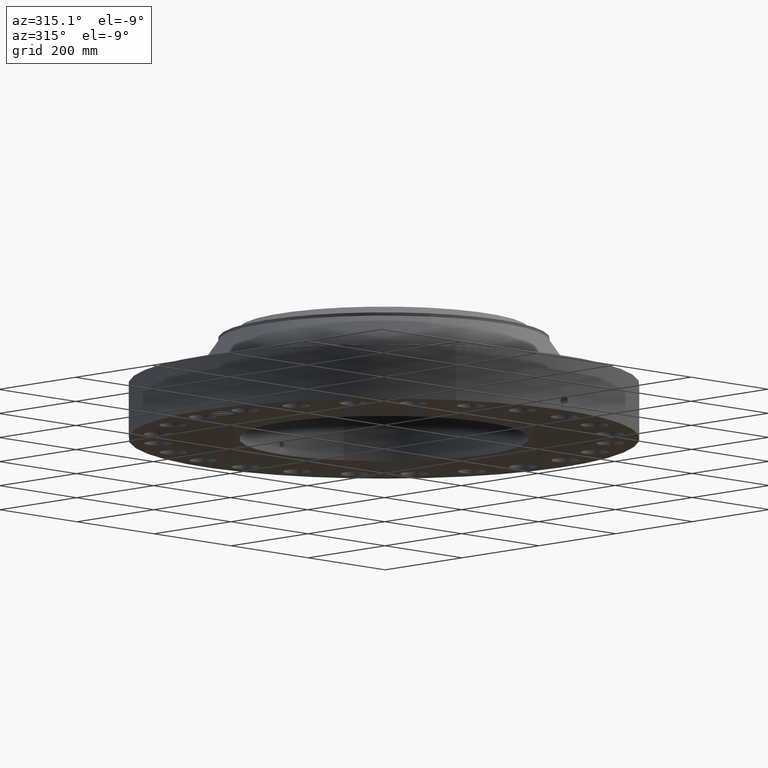
[diagram: clean part render]
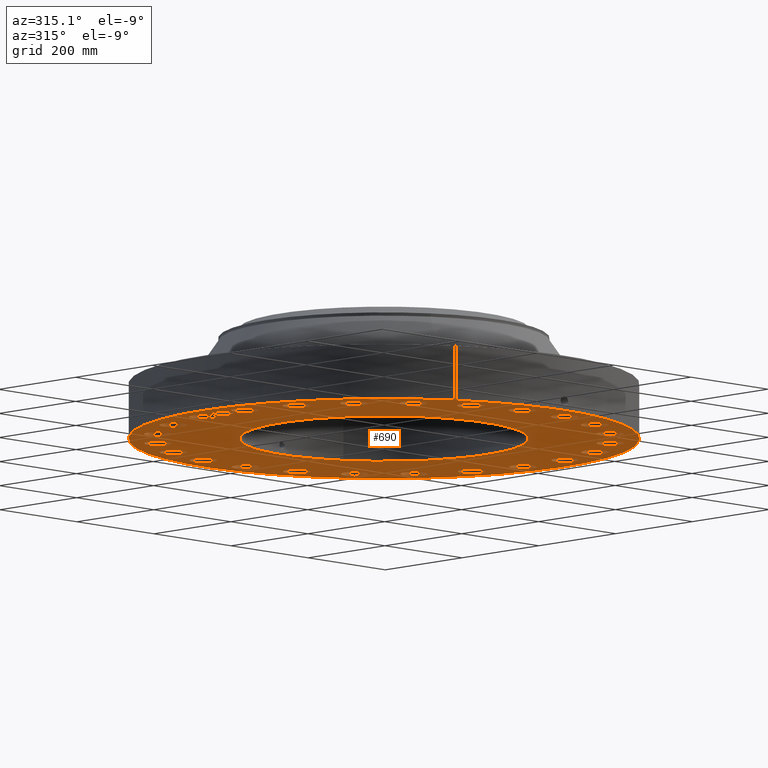
[diagram: same view with one face highlighted and labeled with its STEP entity id]
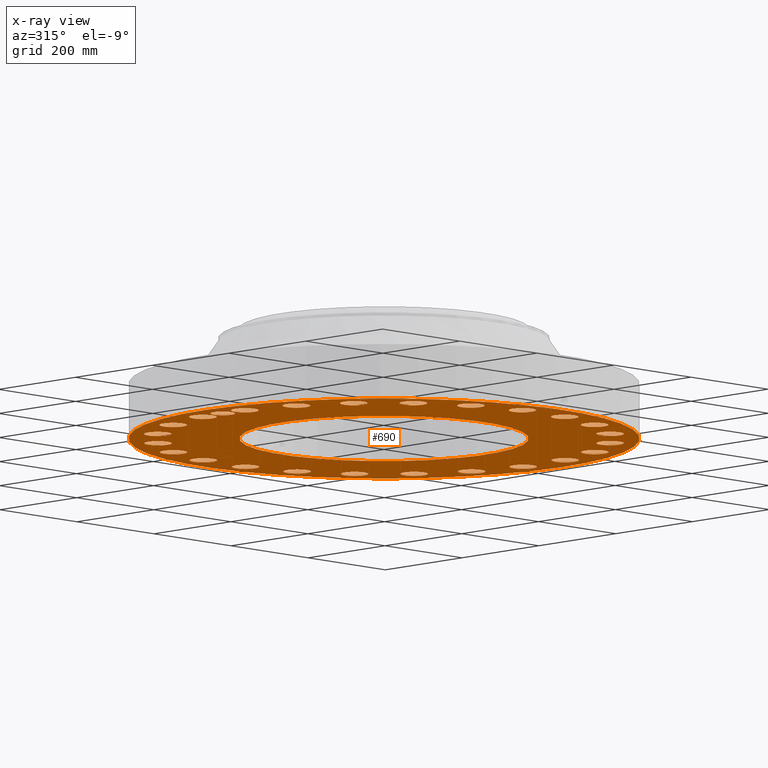
[diagram: x-ray of the same camera — body ghosted, the highlighted face saturated]
A machine part, auxiliary view. The second image highlights one B-rep face of the part: STEP entity #690.
The next image is the same camera in x-ray: the body ghosted, the highlighted face saturated — about 0% of this face is hidden behind the body in this view.
In plain terms, the highlighted planar face has unit normal (0, 0, -1).
Its self-contained STEP definition (entity closure, byte-faithful):
#42=AXIS2_PLACEMENT_3D('Circle Axis2P3D',#40,#41,$) ;
#165=AXIS2_PLACEMENT_3D('Plane Axis2P3D',#162,#163,#164) ;
#169=AXIS2_PLACEMENT_3D('Circle Axis2P3D',#167,#168,$) ;
#178=AXIS2_PLACEMENT_3D('Circle Axis2P3D',#176,#177,$) ;
#187=AXIS2_PLACEMENT_3D('Circle Axis2P3D',#185,#186,$) ;
#242=AXIS2_PLACEMENT_3D('Circle Axis2P3D',#240,#241,$) ;
#251=AXIS2_PLACEMENT_3D('Circle Axis2P3D',#249,#250,$) ;
#260=AXIS2_PLACEMENT_3D('Circle Axis2P3D',#258,#259,$) ;
#269=AXIS2_PLACEMENT_3D('Circle Axis2P3D',#267,#268,$) ;
#278=AXIS2_PLACEMENT_3D('Circle Axis2P3D',#276,#277,$) ;
#287=AXIS2_PLACEMENT_3D('Circle Axis2P3D',#285,#286,$) ;
#296=AXIS2_PLACEMENT_3D('Circle Axis2P3D',#294,#295,$) ;
#305=AXIS2_PLACEMENT_3D('Circle Axis2P3D',#303,#304,$) ;
#314=AXIS2_PLACEMENT_3D('Circle Axis2P3D',#312,#313,$) ;
#323=AXIS2_PLACEMENT_3D('Circle Axis2P3D',#321,#322,$) ;
#332=AXIS2_PLACEMENT_3D('Circle Axis2P3D',#330,#331,$) ;
#341=AXIS2_PLACEMENT_3D('Circle Axis2P3D',#339,#340,$) ;
#350=AXIS2_PLACEMENT_3D('Circle Axis2P3D',#348,#349,$) ;
#359=AXIS2_PLACEMENT_3D('Circle Axis2P3D',#357,#358,$) ;
#368=AXIS2_PLACEMENT_3D('Circle Axis2P3D',#366,#367,$) ;
#377=AXIS2_PLACEMENT_3D('Circle Axis2P3D',#375,#376,$) ;
#386=AXIS2_PLACEMENT_3D('Circle Axis2P3D',#384,#385,$) ;
#395=AXIS2_PLACEMENT_3D('Circle Axis2P3D',#393,#394,$) ;
#404=AXIS2_PLACEMENT_3D('Circle Axis2P3D',#402,#403,$) ;
#413=AXIS2_PLACEMENT_3D('Circle Axis2P3D',#411,#412,$) ;
#422=AXIS2_PLACEMENT_3D('Circle Axis2P3D',#420,#421,$) ;
#431=AXIS2_PLACEMENT_3D('Circle Axis2P3D',#429,#430,$) ;
#440=AXIS2_PLACEMENT_3D('Circle Axis2P3D',#438,#439,$) ;
#449=AXIS2_PLACEMENT_3D('Circle Axis2P3D',#447,#448,$) ;
#458=AXIS2_PLACEMENT_3D('Circle Axis2P3D',#456,#457,$) ;
#467=AXIS2_PLACEMENT_3D('Circle Axis2P3D',#465,#466,$) ;
#476=AXIS2_PLACEMENT_3D('Circle Axis2P3D',#474,#475,$) ;
#485=AXIS2_PLACEMENT_3D('Circle Axis2P3D',#483,#484,$) ;
#494=AXIS2_PLACEMENT_3D('Circle Axis2P3D',#492,#493,$) ;
#503=AXIS2_PLACEMENT_3D('Circle Axis2P3D',#501,#502,$) ;
#512=AXIS2_PLACEMENT_3D('Circle Axis2P3D',#510,#511,$) ;
#521=AXIS2_PLACEMENT_3D('Circle Axis2P3D',#519,#520,$) ;
#530=AXIS2_PLACEMENT_3D('Circle Axis2P3D',#528,#529,$) ;
#539=AXIS2_PLACEMENT_3D('Circle Axis2P3D',#537,#538,$) ;
#548=AXIS2_PLACEMENT_3D('Circle Axis2P3D',#546,#547,$) ;
#557=AXIS2_PLACEMENT_3D('Circle Axis2P3D',#555,#556,$) ;
#566=AXIS2_PLACEMENT_3D('Circle Axis2P3D',#564,#565,$) ;
#575=AXIS2_PLACEMENT_3D('Circle Axis2P3D',#573,#574,$) ;
#584=AXIS2_PLACEMENT_3D('Circle Axis2P3D',#582,#583,$) ;
#593=AXIS2_PLACEMENT_3D('Circle Axis2P3D',#591,#592,$) ;
#602=AXIS2_PLACEMENT_3D('Circle Axis2P3D',#600,#601,$) ;
#611=AXIS2_PLACEMENT_3D('Circle Axis2P3D',#609,#610,$) ;
#620=AXIS2_PLACEMENT_3D('Circle Axis2P3D',#618,#619,$) ;
#629=AXIS2_PLACEMENT_3D('Circle Axis2P3D',#627,#628,$) ;
#638=AXIS2_PLACEMENT_3D('Circle Axis2P3D',#636,#637,$) ;
#647=AXIS2_PLACEMENT_3D('Circle Axis2P3D',#645,#646,$) ;
#656=AXIS2_PLACEMENT_3D('Circle Axis2P3D',#654,#655,$) ;
#665=AXIS2_PLACEMENT_3D('Circle Axis2P3D',#663,#664,$) ;
#674=AXIS2_PLACEMENT_3D('Circle Axis2P3D',#672,#673,$) ;
#683=AXIS2_PLACEMENT_3D('Circle Axis2P3D',#681,#682,$) ;
#40=CARTESIAN_POINT('Axis2P3D Location',(0.,0.,0.250000000001)) ;
#44=CARTESIAN_POINT('Vertex',(-8.86937246421,-16.235277395,0.250000000001)) ;
#46=CARTESIAN_POINT('Vertex',(8.86937246421,16.235277395,0.250000000001)) ;
#162=CARTESIAN_POINT('Axis2P3D Location',(0.,10.469,0.250000000001)) ;
#167=CARTESIAN_POINT('Axis2P3D Location',(0.,0.,0.250000000001)) ;
#176=CARTESIAN_POINT('Axis2P3D Location',(-16.5000000001,4.47585975282E-015,0.250000000001)) ;
#180=CARTESIAN_POINT('Vertex',(-17.2613906308,0.415949597295,0.250000000001)) ;
#182=CARTESIAN_POINT('Vertex',(-16.590741769,0.862841637482,0.250000000001)) ;
#185=CARTESIAN_POINT('Axis2P3D Location',(-16.5000000001,4.47585975282E-015,0.250000000001)) ;
#189=CARTESIAN_POINT('Vertex',(-16.5906086467,-0.862855627071,0.250000000001)) ;
#193=CARTESIAN_POINT('Control Point',(-15.5625000001,-1.56655091349E-014,0.250000000001)) ;
#194=CARTESIAN_POINT('Control Point',(-15.5658491835,-0.0752525782742,0.250000000001)) ;
#195=CARTESIAN_POINT('Control Point',(-15.5767569127,-0.150012452207,0.250000000001)) ;
#196=CARTESIAN_POINT('Control Point',(-15.595153311,-0.223240004507,0.250000000001)) ;
#197=CARTESIAN_POINT('Control Point',(-15.6463784448,-0.364651724394,0.250000000001)) ;
#198=CARTESIAN_POINT('Control Point',(-15.7245736221,-0.492256771824,0.250000000001)) ;
#199=CARTESIAN_POINT('Control Point',(-15.7699608669,-0.551715838755,0.250000000001)) ;
#200=CARTESIAN_POINT('Control Point',(-15.87198889,-0.660302437091,0.250000000001)) ;
#201=CARTESIAN_POINT('Control Point',(-15.9933300125,-0.745568323186,0.250000000001)) ;
#202=CARTESIAN_POINT('Control Point',(-16.0580541549,-0.781724386493,0.250000000001)) ;
#203=CARTESIAN_POINT('Control Point',(-16.1936447904,-0.840027252768,0.250000000001)) ;
#204=CARTESIAN_POINT('Control Point',(-16.3376794475,-0.869225093167,0.250000000001)) ;
#205=CARTESIAN_POINT('Control Point',(-16.4107743428,-0.876250830927,0.250000000001)) ;
#206=CARTESIAN_POINT('Control Point',(-16.4909459385,-0.875557298013,0.250000000001)) ;
#207=CARTESIAN_POINT('Control Point',(-16.5699063519,-0.86582947926,0.250000000001)) ;
#208=CARTESIAN_POINT('Control Point',(-16.5768185864,-0.864907321533,0.250000000001)) ;
#209=CARTESIAN_POINT('Control Point',(-16.5837196634,-0.863915983992,0.250000000001)) ;
#210=CARTESIAN_POINT('Control Point',(-16.5906086467,-0.862855627071,0.250000000001)) ;
#211=CARTESIAN_POINT('Vertex',(-15.5625000001,-1.56655091349E-014,0.250000000001)) ;
#215=CARTESIAN_POINT('Control Point',(-15.5625000001,-1.56655091349E-014,0.250000000001)) ;
#216=CARTESIAN_POINT('Control Point',(-15.5658486135,0.0752397724999,0.250000000001)) ;
#217=CARTESIAN_POINT('Control Point',(-15.5767532367,0.149986987207,0.250000000001)) ;
#218=CARTESIAN_POINT('Control Point',(-15.5951503896,0.223216870491,0.250000000001)) ;
#219=CARTESIAN_POINT('Control Point',(-15.6463729566,0.364618140444,0.250000000001)) ;
#220=CARTESIAN_POINT('Control Point',(-15.7245961842,0.492273995126,0.250000000001)) ;
#221=CARTESIAN_POINT('Control Point',(-15.7699945474,0.551754397031,0.250000000001)) ;
#222=CARTESIAN_POINT('Control Point',(-15.8720308023,0.660346398007,0.250000000001)) ;
#223=CARTESIAN_POINT('Control Point',(-15.9934276315,0.745630282503,0.250000000001)) ;
#224=CARTESIAN_POINT('Control Point',(-16.0581599068,0.781776437135,0.250000000001)) ;
#225=CARTESIAN_POINT('Control Point',(-16.1712134514,0.830357875187,0.250000000001)) ;
#226=CARTESIAN_POINT('Control Point',(-16.2901020301,0.858710400353,0.250000000001)) ;
#227=CARTESIAN_POINT('Control Point',(-16.3382766881,0.866725012902,0.250000000001)) ;
#228=CARTESIAN_POINT('Control Point',(-16.4180331661,0.874371080252,0.250000000001)) ;
#229=CARTESIAN_POINT('Control Point',(-16.4977856444,0.872912352544,0.250000000001)) ;
#230=CARTESIAN_POINT('Control Point',(-16.528967202,0.870941303386,0.250000000001)) ;
#231=CARTESIAN_POINT('Control Point',(-16.5599800331,0.867579204215,0.250000000001)) ;
#232=CARTESIAN_POINT('Control Point',(-16.590741769,0.862841637482,0.250000000001)) ;
#240=CARTESIAN_POINT('Axis2P3D Location',(16.3588402127,-2.15368217164,0.250000000001)) ;
#244=CARTESIAN_POINT('Vertex',(17.2364227746,-2.63310771025,0.250000000001)) ;
#246=CARTESIAN_POINT('Vertex',(15.4812576508,-1.67425663303,0.250000000001)) ;
#249=CARTESIAN_POINT('Axis2P3D Location',(16.3588402127,-2.15368217164,0.250000000001)) ;
#258=CARTESIAN_POINT('Axis2P3D Location',(0.,0.,0.250000000001)) ;
#262=CARTESIAN_POINT('Vertex',(5.01910596367,9.18741184047,0.250000000001)) ;
#264=CARTESIAN_POINT('Vertex',(-5.01910596367,-9.18741184047,0.250000000001)) ;
#267=CARTESIAN_POINT('Axis2P3D Location',(0.,0.,0.250000000001)) ;
#276=CARTESIAN_POINT('Axis2P3D Location',(15.2440122865,-6.31427663405,0.250000000001)) ;
#280=CARTESIAN_POINT('Vertex',(14.5204170854,-5.62405204386,0.250000000001)) ;
#282=CARTESIAN_POINT('Vertex',(15.9676074876,-7.00450122424,0.250000000001)) ;
#285=CARTESIAN_POINT('Axis2P3D Location',(15.2440122865,-6.31427663405,0.250000000001)) ;
#294=CARTESIAN_POINT('Axis2P3D Location',(13.0903301149,-10.0445635787,0.250000000001)) ;
#298=CARTESIAN_POINT('Vertex',(12.5700340916,-9.19057760208,0.250000000001)) ;
#300=CARTESIAN_POINT('Vertex',(13.6106261381,-10.8985495553,0.250000000001)) ;
#303=CARTESIAN_POINT('Axis2P3D Location',(13.0903301149,-10.0445635787,0.250000000001)) ;
#312=CARTESIAN_POINT('Axis2P3D Location',(10.0445635787,-13.0903301149,0.250000000001)) ;
#316=CARTESIAN_POINT('Vertex',(9.76302404754,-12.1307804849,0.250000000001)) ;
#318=CARTESIAN_POINT('Vertex',(10.3261031098,-14.0498797448,0.250000000001)) ;
#321=CARTESIAN_POINT('Axis2P3D Location',(10.0445635787,-13.0903301149,0.250000000001)) ;
#330=CARTESIAN_POINT('Axis2P3D Location',(6.31427663405,-15.2440122865,0.250000000001)) ;
#334=CARTESIAN_POINT('Vertex',(6.29068004876,-14.2442907247,0.250000000001)) ;
#336=CARTESIAN_POINT('Vertex',(6.33787321934,-16.2437338483,0.250000000001)) ;
#339=CARTESIAN_POINT('Axis2P3D Location',(6.31427663405,-15.2440122865,0.250000000001)) ;
#348=CARTESIAN_POINT('Axis2P3D Location',(2.15368217164,-16.3588402127,0.250000000001)) ;
#352=CARTESIAN_POINT('Vertex',(2.38963660049,-15.3870760914,0.250000000001)) ;
#354=CARTESIAN_POINT('Vertex',(1.91772774279,-17.3306043341,0.250000000001)) ;
#357=CARTESIAN_POINT('Axis2P3D Location',(2.15368217164,-16.3588402127,0.250000000001)) ;
#366=CARTESIAN_POINT('Axis2P3D Location',(-2.15368217164,-16.3588402127,0.250000000001)) ;
#370=CARTESIAN_POINT('Vertex',(-1.67425663303,-15.4812576508,0.250000000001)) ;
#372=CARTESIAN_POINT('Vertex',(-2.63310771025,-17.2364227746,0.250000000001)) ;
#375=CARTESIAN_POINT('Axis2P3D Location',(-2.15368217164,-16.3588402127,0.250000000001)) ;
#384=CARTESIAN_POINT('Axis2P3D Location',(-6.31427663405,-15.2440122865,0.250000000001)) ;
#388=CARTESIAN_POINT('Vertex',(-5.62405204386,-14.5204170854,0.250000000001)) ;
#390=CARTESIAN_POINT('Vertex',(-7.00450122424,-15.9676074876,0.250000000001)) ;
#393=CARTESIAN_POINT('Axis2P3D Location',(-6.31427663405,-15.2440122865,0.250000000001)) ;
#402=CARTESIAN_POINT('Axis2P3D Location',(-10.0445635787,-13.0903301149,0.250000000001)) ;
#406=CARTESIAN_POINT('Vertex',(-9.19057760208,-12.5700340916,0.250000000001)) ;
#408=CARTESIAN_POINT('Vertex',(-10.8985495553,-13.6106261381,0.250000000001)) ;
#411=CARTESIAN_POINT('Axis2P3D Location',(-10.0445635787,-13.0903301149,0.250000000001)) ;
#420=CARTESIAN_POINT('Axis2P3D Location',(-13.0903301149,-10.0445635787,0.250000000001)) ;
#424=CARTESIAN_POINT('Vertex',(-12.1307804849,-9.76302404754,0.250000000001)) ;
#426=CARTESIAN_POINT('Vertex',(-14.0498797448,-10.3261031098,0.250000000001)) ;
#429=CARTESIAN_POINT('Axis2P3D Location',(-13.0903301149,-10.0445635787,0.250000000001)) ;
#438=CARTESIAN_POINT('Axis2P3D Location',(-15.2440122865,-6.31427663405,0.250000000001)) ;
#442=CARTESIAN_POINT('Vertex',(-14.2442907247,-6.29068004876,0.250000000001)) ;
#444=CARTESIAN_POINT('Vertex',(-16.2437338483,-6.33787321934,0.250000000001)) ;
#447=CARTESIAN_POINT('Axis2P3D Location',(-15.2440122865,-6.31427663405,0.250000000001)) ;
#456=CARTESIAN_POINT('Axis2P3D Location',(-16.3588402127,-2.15368217164,0.250000000001)) ;
#460=CARTESIAN_POINT('Vertex',(-15.3870760914,-2.38963660049,0.250000000001)) ;
#462=CARTESIAN_POINT('Vertex',(-17.3306043341,-1.91772774279,0.250000000001)) ;
#465=CARTESIAN_POINT('Axis2P3D Location',(-16.3588402127,-2.15368217164,0.250000000001)) ;
#474=CARTESIAN_POINT('Axis2P3D Location',(-16.3588402127,2.15368217164,0.250000000001)) ;
#478=CARTESIAN_POINT('Vertex',(-15.4812576508,1.67425663303,0.250000000001)) ;
#480=CARTESIAN_POINT('Vertex',(-17.2364227746,2.63310771025,0.250000000001)) ;
#483=CARTESIAN_POINT('Axis2P3D Location',(-16.3588402127,2.15368217164,0.250000000001)) ;
#492=CARTESIAN_POINT('Axis2P3D Location',(-15.2440122865,6.31427663405,0.250000000001)) ;
#496=CARTESIAN_POINT('Vertex',(-14.5204170854,5.62405204386,0.250000000001)) ;
#498=CARTESIAN_POINT('Vertex',(-15.9676074876,7.00450122424,0.250000000001)) ;
#501=CARTESIAN_POINT('Axis2P3D Location',(-15.2440122865,6.31427663405,0.250000000001)) ;
#510=CARTESIAN_POINT('Axis2P3D Location',(-13.0903301149,10.0445635787,0.250000000001)) ;
#514=CARTESIAN_POINT('Vertex',(-12.5700340916,9.19057760208,0.250000000001)) ;
#516=CARTESIAN_POINT('Vertex',(-13.6106261381,10.8985495553,0.250000000001)) ;
#519=CARTESIAN_POINT('Axis2P3D Location',(-13.0903301149,10.0445635787,0.250000000001)) ;
#528=CARTESIAN_POINT('Axis2P3D Location',(-10.0445635787,13.0903301149,0.250000000001)) ;
#532=CARTESIAN_POINT('Vertex',(-9.76302404754,12.1307804849,0.250000000001)) ;
#534=CARTESIAN_POINT('Vertex',(-10.3261031098,14.0498797448,0.250000000001)) ;
#537=CARTESIAN_POINT('Axis2P3D Location',(-10.0445635787,13.0903301149,0.250000000001)) ;
#546=CARTESIAN_POINT('Axis2P3D Location',(-6.31427663405,15.2440122865,0.250000000001)) ;
#550=CARTESIAN_POINT('Vertex',(-6.29068004876,14.2442907247,0.250000000001)) ;
#552=CARTESIAN_POINT('Vertex',(-6.33787321934,16.2437338483,0.250000000001)) ;
#555=CARTESIAN_POINT('Axis2P3D Location',(-6.31427663405,15.2440122865,0.250000000001)) ;
#564=CARTESIAN_POINT('Axis2P3D Location',(-2.15368217164,16.3588402127,0.250000000001)) ;
#568=CARTESIAN_POINT('Vertex',(-2.38963660049,15.3870760914,0.250000000001)) ;
#570=CARTESIAN_POINT('Vertex',(-1.91772774279,17.3306043341,0.250000000001)) ;
#573=CARTESIAN_POINT('Axis2P3D Location',(-2.15368217164,16.3588402127,0.250000000001)) ;
#582=CARTESIAN_POINT('Axis2P3D Location',(2.15368217164,16.3588402127,0.250000000001)) ;
#586=CARTESIAN_POINT('Vertex',(1.67425663303,15.4812576508,0.250000000001)) ;
#588=CARTESIAN_POINT('Vertex',(2.63310771025,17.2364227746,0.250000000001)) ;
#591=CARTESIAN_POINT('Axis2P3D Location',(2.15368217164,16.3588402127,0.250000000001)) ;
#600=CARTESIAN_POINT('Axis2P3D Location',(6.31427663405,15.2440122865,0.250000000001)) ;
#604=CARTESIAN_POINT('Vertex',(5.62405204386,14.5204170854,0.250000000001)) ;
#606=CARTESIAN_POINT('Vertex',(7.00450122424,15.9676074876,0.250000000001)) ;
#609=CARTESIAN_POINT('Axis2P3D Location',(6.31427663405,15.2440122865,0.250000000001)) ;
#618=CARTESIAN_POINT('Axis2P3D Location',(10.0445635787,13.0903301149,0.250000000001)) ;
#622=CARTESIAN_POINT('Vertex',(9.19057760208,12.5700340916,0.250000000001)) ;
#624=CARTESIAN_POINT('Vertex',(10.8985495553,13.6106261381,0.250000000001)) ;
#627=CARTESIAN_POINT('Axis2P3D Location',(10.0445635787,13.0903301149,0.250000000001)) ;
#636=CARTESIAN_POINT('Axis2P3D Location',(13.0903301149,10.0445635787,0.250000000001)) ;
#640=CARTESIAN_POINT('Vertex',(12.1307804849,9.76302404754,0.250000000001)) ;
#642=CARTESIAN_POINT('Vertex',(14.0498797448,10.3261031098,0.250000000001)) ;
#645=CARTESIAN_POINT('Axis2P3D Location',(13.0903301149,10.0445635787,0.250000000001)) ;
#654=CARTESIAN_POINT('Axis2P3D Location',(15.2440122865,6.31427663405,0.250000000001)) ;
#658=CARTESIAN_POINT('Vertex',(14.2442907247,6.29068004876,0.250000000001)) ;
#660=CARTESIAN_POINT('Vertex',(16.2437338483,6.33787321934,0.250000000001)) ;
#663=CARTESIAN_POINT('Axis2P3D Location',(15.2440122865,6.31427663405,0.250000000001)) ;
#672=CARTESIAN_POINT('Axis2P3D Location',(16.3588402127,2.15368217164,0.250000000001)) ;
#676=CARTESIAN_POINT('Vertex',(15.3870760914,2.38963660049,0.250000000001)) ;
#678=CARTESIAN_POINT('Vertex',(17.3306043341,1.91772774279,0.250000000001)) ;
#681=CARTESIAN_POINT('Axis2P3D Location',(16.3588402127,2.15368217164,0.250000000001)) ;
#41=DIRECTION('Axis2P3D Direction',(0.,0.,-0.0393700787402)) ;
#163=DIRECTION('Axis2P3D Direction',(0.,0.,-0.0393700787402)) ;
#164=DIRECTION('Axis2P3D XDirection',(0.0393700787402,0.,0.)) ;
#168=DIRECTION('Axis2P3D Direction',(0.,0.,-0.0393700787402)) ;
#177=DIRECTION('Axis2P3D Direction',(0.,0.,-0.0393700787402)) ;
#186=DIRECTION('Axis2P3D Direction',(0.,0.,-0.0393700787402)) ;
#241=DIRECTION('Axis2P3D Direction',(0.,0.,-0.0393700787402)) ;
#250=DIRECTION('Axis2P3D Direction',(0.,0.,-0.0393700787402)) ;
#259=DIRECTION('Axis2P3D Direction',(0.,0.,-0.0393700787402)) ;
#268=DIRECTION('Axis2P3D Direction',(0.,0.,-0.0393700787402)) ;
#277=DIRECTION('Axis2P3D Direction',(0.,0.,-0.0393700787402)) ;
#286=DIRECTION('Axis2P3D Direction',(0.,0.,-0.0393700787402)) ;
#295=DIRECTION('Axis2P3D Direction',(0.,0.,-0.0393700787402)) ;
#304=DIRECTION('Axis2P3D Direction',(0.,0.,-0.0393700787402)) ;
#313=DIRECTION('Axis2P3D Direction',(0.,0.,-0.0393700787402)) ;
#322=DIRECTION('Axis2P3D Direction',(0.,0.,-0.0393700787402)) ;
#331=DIRECTION('Axis2P3D Direction',(0.,0.,-0.0393700787402)) ;
#340=DIRECTION('Axis2P3D Direction',(0.,0.,-0.0393700787402)) ;
#349=DIRECTION('Axis2P3D Direction',(0.,0.,-0.0393700787402)) ;
#358=DIRECTION('Axis2P3D Direction',(0.,0.,-0.0393700787402)) ;
#367=DIRECTION('Axis2P3D Direction',(0.,0.,-0.0393700787402)) ;
#376=DIRECTION('Axis2P3D Direction',(0.,0.,-0.0393700787402)) ;
#385=DIRECTION('Axis2P3D Direction',(0.,0.,-0.0393700787402)) ;
#394=DIRECTION('Axis2P3D Direction',(0.,0.,-0.0393700787402)) ;
#403=DIRECTION('Axis2P3D Direction',(0.,0.,-0.0393700787402)) ;
#412=DIRECTION('Axis2P3D Direction',(0.,0.,-0.0393700787402)) ;
#421=DIRECTION('Axis2P3D Direction',(0.,0.,-0.0393700787402)) ;
#430=DIRECTION('Axis2P3D Direction',(0.,0.,-0.0393700787402)) ;
#439=DIRECTION('Axis2P3D Direction',(0.,0.,-0.0393700787402)) ;
#448=DIRECTION('Axis2P3D Direction',(0.,0.,-0.0393700787402)) ;
#457=DIRECTION('Axis2P3D Direction',(0.,0.,-0.0393700787402)) ;
#466=DIRECTION('Axis2P3D Direction',(0.,0.,-0.0393700787402)) ;
#475=DIRECTION('Axis2P3D Direction',(0.,0.,-0.0393700787402)) ;
#484=DIRECTION('Axis2P3D Direction',(0.,0.,-0.0393700787402)) ;
#493=DIRECTION('Axis2P3D Direction',(0.,0.,-0.0393700787402)) ;
#502=DIRECTION('Axis2P3D Direction',(0.,0.,-0.0393700787402)) ;
#511=DIRECTION('Axis2P3D Direction',(0.,0.,-0.0393700787402)) ;
#520=DIRECTION('Axis2P3D Direction',(0.,0.,-0.0393700787402)) ;
#529=DIRECTION('Axis2P3D Direction',(0.,0.,-0.0393700787402)) ;
#538=DIRECTION('Axis2P3D Direction',(0.,0.,-0.0393700787402)) ;
#547=DIRECTION('Axis2P3D Direction',(0.,0.,-0.0393700787402)) ;
#556=DIRECTION('Axis2P3D Direction',(0.,0.,-0.0393700787402)) ;
#565=DIRECTION('Axis2P3D Direction',(0.,0.,-0.0393700787402)) ;
#574=DIRECTION('Axis2P3D Direction',(0.,0.,-0.0393700787402)) ;
#583=DIRECTION('Axis2P3D Direction',(0.,0.,-0.0393700787402)) ;
#592=DIRECTION('Axis2P3D Direction',(0.,0.,-0.0393700787402)) ;
#601=DIRECTION('Axis2P3D Direction',(0.,0.,-0.0393700787402)) ;
#610=DIRECTION('Axis2P3D Direction',(0.,0.,-0.0393700787402)) ;
#619=DIRECTION('Axis2P3D Direction',(0.,0.,-0.0393700787402)) ;
#628=DIRECTION('Axis2P3D Direction',(0.,0.,-0.0393700787402)) ;
#637=DIRECTION('Axis2P3D Direction',(0.,0.,-0.0393700787402)) ;
#646=DIRECTION('Axis2P3D Direction',(0.,0.,-0.0393700787402)) ;
#655=DIRECTION('Axis2P3D Direction',(0.,0.,-0.0393700787402)) ;
#664=DIRECTION('Axis2P3D Direction',(0.,0.,-0.0393700787402)) ;
#673=DIRECTION('Axis2P3D Direction',(0.,0.,-0.0393700787402)) ;
#682=DIRECTION('Axis2P3D Direction',(0.,0.,-0.0393700787402)) ;
#173=ORIENTED_EDGE('',*,*,#48,.T.) ;
#174=ORIENTED_EDGE('',*,*,#171,.T.) ;
#235=ORIENTED_EDGE('',*,*,#184,.F.) ;
#236=ORIENTED_EDGE('',*,*,#191,.F.) ;
#237=ORIENTED_EDGE('',*,*,#213,.F.) ;
#238=ORIENTED_EDGE('',*,*,#233,.T.) ;
#255=ORIENTED_EDGE('',*,*,#248,.F.) ;
#256=ORIENTED_EDGE('',*,*,#253,.F.) ;
#273=ORIENTED_EDGE('',*,*,#266,.F.) ;
#274=ORIENTED_EDGE('',*,*,#271,.F.) ;
#291=ORIENTED_EDGE('',*,*,#284,.F.) ;
#292=ORIENTED_EDGE('',*,*,#289,.F.) ;
#309=ORIENTED_EDGE('',*,*,#302,.F.) ;
#310=ORIENTED_EDGE('',*,*,#307,.F.) ;
#327=ORIENTED_EDGE('',*,*,#320,.F.) ;
#328=ORIENTED_EDGE('',*,*,#325,.F.) ;
#345=ORIENTED_EDGE('',*,*,#338,.F.) ;
#346=ORIENTED_EDGE('',*,*,#343,.F.) ;
#363=ORIENTED_EDGE('',*,*,#356,.F.) ;
#364=ORIENTED_EDGE('',*,*,#361,.F.) ;
#381=ORIENTED_EDGE('',*,*,#374,.F.) ;
#382=ORIENTED_EDGE('',*,*,#379,.F.) ;
#399=ORIENTED_EDGE('',*,*,#392,.F.) ;
#400=ORIENTED_EDGE('',*,*,#397,.F.) ;
#417=ORIENTED_EDGE('',*,*,#410,.F.) ;
#418=ORIENTED_EDGE('',*,*,#415,.F.) ;
#435=ORIENTED_EDGE('',*,*,#428,.F.) ;
#436=ORIENTED_EDGE('',*,*,#433,.F.) ;
#453=ORIENTED_EDGE('',*,*,#446,.F.) ;
#454=ORIENTED_EDGE('',*,*,#451,.F.) ;
#471=ORIENTED_EDGE('',*,*,#464,.F.) ;
#472=ORIENTED_EDGE('',*,*,#469,.F.) ;
#489=ORIENTED_EDGE('',*,*,#482,.F.) ;
#490=ORIENTED_EDGE('',*,*,#487,.F.) ;
#507=ORIENTED_EDGE('',*,*,#500,.F.) ;
#508=ORIENTED_EDGE('',*,*,#505,.F.) ;
#525=ORIENTED_EDGE('',*,*,#518,.F.) ;
#526=ORIENTED_EDGE('',*,*,#523,.F.) ;
#543=ORIENTED_EDGE('',*,*,#536,.F.) ;
#544=ORIENTED_EDGE('',*,*,#541,.F.) ;
#561=ORIENTED_EDGE('',*,*,#554,.F.) ;
#562=ORIENTED_EDGE('',*,*,#559,.F.) ;
#579=ORIENTED_EDGE('',*,*,#572,.F.) ;
#580=ORIENTED_EDGE('',*,*,#577,.F.) ;
#597=ORIENTED_EDGE('',*,*,#590,.F.) ;
#598=ORIENTED_EDGE('',*,*,#595,.F.) ;
#615=ORIENTED_EDGE('',*,*,#608,.F.) ;
#616=ORIENTED_EDGE('',*,*,#613,.F.) ;
#633=ORIENTED_EDGE('',*,*,#626,.F.) ;
#634=ORIENTED_EDGE('',*,*,#631,.F.) ;
#651=ORIENTED_EDGE('',*,*,#644,.F.) ;
#652=ORIENTED_EDGE('',*,*,#649,.F.) ;
#669=ORIENTED_EDGE('',*,*,#662,.F.) ;
#670=ORIENTED_EDGE('',*,*,#667,.F.) ;
#687=ORIENTED_EDGE('',*,*,#680,.F.) ;
#688=ORIENTED_EDGE('',*,*,#685,.F.) ;
#239=FACE_BOUND('',#234,.T.) ;
#257=FACE_BOUND('',#254,.T.) ;
#275=FACE_BOUND('',#272,.T.) ;
#293=FACE_BOUND('',#290,.T.) ;
#311=FACE_BOUND('',#308,.T.) ;
#329=FACE_BOUND('',#326,.T.) ;
#347=FACE_BOUND('',#344,.T.) ;
#365=FACE_BOUND('',#362,.T.) ;
#383=FACE_BOUND('',#380,.T.) ;
#401=FACE_BOUND('',#398,.T.) ;
#419=FACE_BOUND('',#416,.T.) ;
#437=FACE_BOUND('',#434,.T.) ;
#455=FACE_BOUND('',#452,.T.) ;
#473=FACE_BOUND('',#470,.T.) ;
#491=FACE_BOUND('',#488,.T.) ;
#509=FACE_BOUND('',#506,.T.) ;
#527=FACE_BOUND('',#524,.T.) ;
#545=FACE_BOUND('',#542,.T.) ;
#563=FACE_BOUND('',#560,.T.) ;
#581=FACE_BOUND('',#578,.T.) ;
#599=FACE_BOUND('',#596,.T.) ;
#617=FACE_BOUND('',#614,.T.) ;
#635=FACE_BOUND('',#632,.T.) ;
#653=FACE_BOUND('',#650,.T.) ;
#671=FACE_BOUND('',#668,.T.) ;
#689=FACE_BOUND('',#686,.T.) ;
#690=ADVANCED_FACE('PartBody',(#175,#239,#257,#275,#293,#311,#329,#347,#365,#383,#401,#419,#437,#455,#473,#491,#509,#527,#545,#563,#581,#599,#617,#635,#653,#671,#689),#166,.T.) ;
#192=B_SPLINE_CURVE_WITH_KNOTS('',5,(#193,#194,#195,#196,#197,#198,#199,#200,#201,#202,#203,#204,#205,#206,#207,#208,#209,#210),.UNSPECIFIED.,.F.,.U.,(6,3,3,3,3,6),(0.,13.0834520953,26.1744147464,39.2706968987,52.3528665669,53.6099931172),.UNSPECIFIED.) ;
#214=B_SPLINE_CURVE_WITH_KNOTS('',5,(#215,#216,#217,#218,#219,#220,#221,#222,#223,#224,#225,#226,#227,#228,#229,#230,#231,#232),.UNSPECIFIED.,.F.,.U.,(6,3,3,3,3,6),(0.,13.0812256766,26.161554648,39.2351719122,47.9468686964,53.5646210853),.UNSPECIFIED.) ;
#43=CIRCLE('generated circle',#42,18.5000000001) ;
#170=CIRCLE('generated circle',#169,18.5000000001) ;
#179=CIRCLE('generated circle',#178,0.867600000003) ;
#188=CIRCLE('generated circle',#187,0.867600000003) ;
#243=CIRCLE('generated circle',#242,1.) ;
#252=CIRCLE('generated circle',#251,1.) ;
#261=CIRCLE('generated circle',#260,10.469) ;
#270=CIRCLE('generated circle',#269,10.469) ;
#279=CIRCLE('generated circle',#278,1.) ;
#288=CIRCLE('generated circle',#287,1.) ;
#297=CIRCLE('generated circle',#296,1.) ;
#306=CIRCLE('generated circle',#305,1.) ;
#315=CIRCLE('generated circle',#314,1.) ;
#324=CIRCLE('generated circle',#323,1.) ;
#333=CIRCLE('generated circle',#332,1.) ;
#342=CIRCLE('generated circle',#341,1.) ;
#351=CIRCLE('generated circle',#350,1.) ;
#360=CIRCLE('generated circle',#359,1.) ;
#369=CIRCLE('generated circle',#368,1.) ;
#378=CIRCLE('generated circle',#377,1.) ;
#387=CIRCLE('generated circle',#386,1.) ;
#396=CIRCLE('generated circle',#395,1.) ;
#405=CIRCLE('generated circle',#404,1.) ;
#414=CIRCLE('generated circle',#413,1.) ;
#423=CIRCLE('generated circle',#422,1.) ;
#432=CIRCLE('generated circle',#431,1.) ;
#441=CIRCLE('generated circle',#440,1.) ;
#450=CIRCLE('generated circle',#449,1.) ;
#459=CIRCLE('generated circle',#458,1.) ;
#468=CIRCLE('generated circle',#467,1.) ;
#477=CIRCLE('generated circle',#476,1.) ;
#486=CIRCLE('generated circle',#485,1.) ;
#495=CIRCLE('generated circle',#494,1.) ;
#504=CIRCLE('generated circle',#503,1.) ;
#513=CIRCLE('generated circle',#512,1.) ;
#522=CIRCLE('generated circle',#521,1.) ;
#531=CIRCLE('generated circle',#530,1.) ;
#540=CIRCLE('generated circle',#539,1.) ;
#549=CIRCLE('generated circle',#548,1.) ;
#558=CIRCLE('generated circle',#557,1.) ;
#567=CIRCLE('generated circle',#566,1.) ;
#576=CIRCLE('generated circle',#575,1.) ;
#585=CIRCLE('generated circle',#584,1.) ;
#594=CIRCLE('generated circle',#593,1.) ;
#603=CIRCLE('generated circle',#602,1.) ;
#612=CIRCLE('generated circle',#611,1.) ;
#621=CIRCLE('generated circle',#620,1.) ;
#630=CIRCLE('generated circle',#629,1.) ;
#639=CIRCLE('generated circle',#638,1.) ;
#648=CIRCLE('generated circle',#647,1.) ;
#657=CIRCLE('generated circle',#656,1.) ;
#666=CIRCLE('generated circle',#665,1.) ;
#675=CIRCLE('generated circle',#674,1.) ;
#684=CIRCLE('generated circle',#683,1.) ;
#48=EDGE_CURVE('',#45,#47,#43,.T.) ;
#171=EDGE_CURVE('',#47,#45,#170,.T.) ;
#184=EDGE_CURVE('',#181,#183,#179,.T.) ;
#191=EDGE_CURVE('',#190,#181,#188,.T.) ;
#213=EDGE_CURVE('',#212,#190,#192,.T.) ;
#233=EDGE_CURVE('',#212,#183,#214,.T.) ;
#248=EDGE_CURVE('',#245,#247,#243,.T.) ;
#253=EDGE_CURVE('',#247,#245,#252,.T.) ;
#266=EDGE_CURVE('',#263,#265,#261,.T.) ;
#271=EDGE_CURVE('',#265,#263,#270,.T.) ;
#284=EDGE_CURVE('',#281,#283,#279,.T.) ;
#289=EDGE_CURVE('',#283,#281,#288,.T.) ;
#302=EDGE_CURVE('',#299,#301,#297,.T.) ;
#307=EDGE_CURVE('',#301,#299,#306,.T.) ;
#320=EDGE_CURVE('',#317,#319,#315,.T.) ;
#325=EDGE_CURVE('',#319,#317,#324,.T.) ;
#338=EDGE_CURVE('',#335,#337,#333,.T.) ;
#343=EDGE_CURVE('',#337,#335,#342,.T.) ;
#356=EDGE_CURVE('',#353,#355,#351,.T.) ;
#361=EDGE_CURVE('',#355,#353,#360,.T.) ;
#374=EDGE_CURVE('',#371,#373,#369,.T.) ;
#379=EDGE_CURVE('',#373,#371,#378,.T.) ;
#392=EDGE_CURVE('',#389,#391,#387,.T.) ;
#397=EDGE_CURVE('',#391,#389,#396,.T.) ;
#410=EDGE_CURVE('',#407,#409,#405,.T.) ;
#415=EDGE_CURVE('',#409,#407,#414,.T.) ;
#428=EDGE_CURVE('',#425,#427,#423,.T.) ;
#433=EDGE_CURVE('',#427,#425,#432,.T.) ;
#446=EDGE_CURVE('',#443,#445,#441,.T.) ;
#451=EDGE_CURVE('',#445,#443,#450,.T.) ;
#464=EDGE_CURVE('',#461,#463,#459,.T.) ;
#469=EDGE_CURVE('',#463,#461,#468,.T.) ;
#482=EDGE_CURVE('',#479,#481,#477,.T.) ;
#487=EDGE_CURVE('',#481,#479,#486,.T.) ;
#500=EDGE_CURVE('',#497,#499,#495,.T.) ;
#505=EDGE_CURVE('',#499,#497,#504,.T.) ;
#518=EDGE_CURVE('',#515,#517,#513,.T.) ;
#523=EDGE_CURVE('',#517,#515,#522,.T.) ;
#536=EDGE_CURVE('',#533,#535,#531,.T.) ;
#541=EDGE_CURVE('',#535,#533,#540,.T.) ;
#554=EDGE_CURVE('',#551,#553,#549,.T.) ;
#559=EDGE_CURVE('',#553,#551,#558,.T.) ;
#572=EDGE_CURVE('',#569,#571,#567,.T.) ;
#577=EDGE_CURVE('',#571,#569,#576,.T.) ;
#590=EDGE_CURVE('',#587,#589,#585,.T.) ;
#595=EDGE_CURVE('',#589,#587,#594,.T.) ;
#608=EDGE_CURVE('',#605,#607,#603,.T.) ;
#613=EDGE_CURVE('',#607,#605,#612,.T.) ;
#626=EDGE_CURVE('',#623,#625,#621,.T.) ;
#631=EDGE_CURVE('',#625,#623,#630,.T.) ;
#644=EDGE_CURVE('',#641,#643,#639,.T.) ;
#649=EDGE_CURVE('',#643,#641,#648,.T.) ;
#662=EDGE_CURVE('',#659,#661,#657,.T.) ;
#667=EDGE_CURVE('',#661,#659,#666,.T.) ;
#680=EDGE_CURVE('',#677,#679,#675,.T.) ;
#685=EDGE_CURVE('',#679,#677,#684,.T.) ;
#172=EDGE_LOOP('',(#173,#174)) ;
#234=EDGE_LOOP('',(#235,#236,#237,#238)) ;
#254=EDGE_LOOP('',(#255,#256)) ;
#272=EDGE_LOOP('',(#273,#274)) ;
#290=EDGE_LOOP('',(#291,#292)) ;
#308=EDGE_LOOP('',(#309,#310)) ;
#326=EDGE_LOOP('',(#327,#328)) ;
#344=EDGE_LOOP('',(#345,#346)) ;
#362=EDGE_LOOP('',(#363,#364)) ;
#380=EDGE_LOOP('',(#381,#382)) ;
#398=EDGE_LOOP('',(#399,#400)) ;
#416=EDGE_LOOP('',(#417,#418)) ;
#434=EDGE_LOOP('',(#435,#436)) ;
#452=EDGE_LOOP('',(#453,#454)) ;
#470=EDGE_LOOP('',(#471,#472)) ;
#488=EDGE_LOOP('',(#489,#490)) ;
#506=EDGE_LOOP('',(#507,#508)) ;
#524=EDGE_LOOP('',(#525,#526)) ;
#542=EDGE_LOOP('',(#543,#544)) ;
#560=EDGE_LOOP('',(#561,#562)) ;
#578=EDGE_LOOP('',(#579,#580)) ;
#596=EDGE_LOOP('',(#597,#598)) ;
#614=EDGE_LOOP('',(#615,#616)) ;
#632=EDGE_LOOP('',(#633,#634)) ;
#650=EDGE_LOOP('',(#651,#652)) ;
#668=EDGE_LOOP('',(#669,#670)) ;
#686=EDGE_LOOP('',(#687,#688)) ;
#175=FACE_OUTER_BOUND('',#172,.T.) ;
#166=PLANE('',#165) ;
#45=VERTEX_POINT('',#44) ;
#47=VERTEX_POINT('',#46) ;
#181=VERTEX_POINT('',#180) ;
#183=VERTEX_POINT('',#182) ;
#190=VERTEX_POINT('',#189) ;
#212=VERTEX_POINT('',#211) ;
#245=VERTEX_POINT('',#244) ;
#247=VERTEX_POINT('',#246) ;
#263=VERTEX_POINT('',#262) ;
#265=VERTEX_POINT('',#264) ;
#281=VERTEX_POINT('',#280) ;
#283=VERTEX_POINT('',#282) ;
#299=VERTEX_POINT('',#298) ;
#301=VERTEX_POINT('',#300) ;
#317=VERTEX_POINT('',#316) ;
#319=VERTEX_POINT('',#318) ;
#335=VERTEX_POINT('',#334) ;
#337=VERTEX_POINT('',#336) ;
#353=VERTEX_POINT('',#352) ;
#355=VERTEX_POINT('',#354) ;
#371=VERTEX_POINT('',#370) ;
#373=VERTEX_POINT('',#372) ;
#389=VERTEX_POINT('',#388) ;
#391=VERTEX_POINT('',#390) ;
#407=VERTEX_POINT('',#406) ;
#409=VERTEX_POINT('',#408) ;
#425=VERTEX_POINT('',#424) ;
#427=VERTEX_POINT('',#426) ;
#443=VERTEX_POINT('',#442) ;
#445=VERTEX_POINT('',#444) ;
#461=VERTEX_POINT('',#460) ;
#463=VERTEX_POINT('',#462) ;
#479=VERTEX_POINT('',#478) ;
#481=VERTEX_POINT('',#480) ;
#497=VERTEX_POINT('',#496) ;
#499=VERTEX_POINT('',#498) ;
#515=VERTEX_POINT('',#514) ;
#517=VERTEX_POINT('',#516) ;
#533=VERTEX_POINT('',#532) ;
#535=VERTEX_POINT('',#534) ;
#551=VERTEX_POINT('',#550) ;
#553=VERTEX_POINT('',#552) ;
#569=VERTEX_POINT('',#568) ;
#571=VERTEX_POINT('',#570) ;
#587=VERTEX_POINT('',#586) ;
#589=VERTEX_POINT('',#588) ;
#605=VERTEX_POINT('',#604) ;
#607=VERTEX_POINT('',#606) ;
#623=VERTEX_POINT('',#622) ;
#625=VERTEX_POINT('',#624) ;
#641=VERTEX_POINT('',#640) ;
#643=VERTEX_POINT('',#642) ;
#659=VERTEX_POINT('',#658) ;
#661=VERTEX_POINT('',#660) ;
#677=VERTEX_POINT('',#676) ;
#679=VERTEX_POINT('',#678) ;